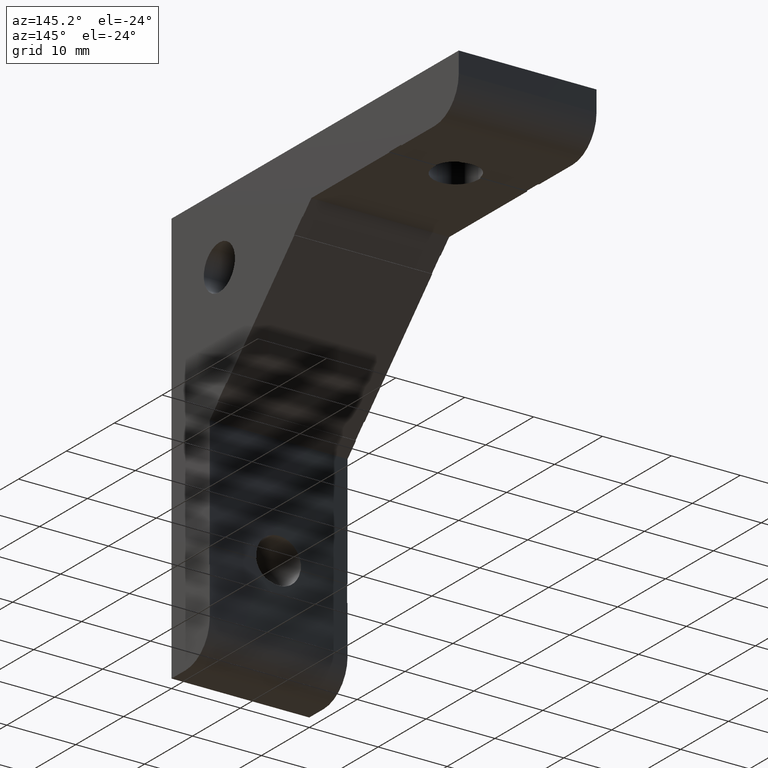
[diagram: clean part render]
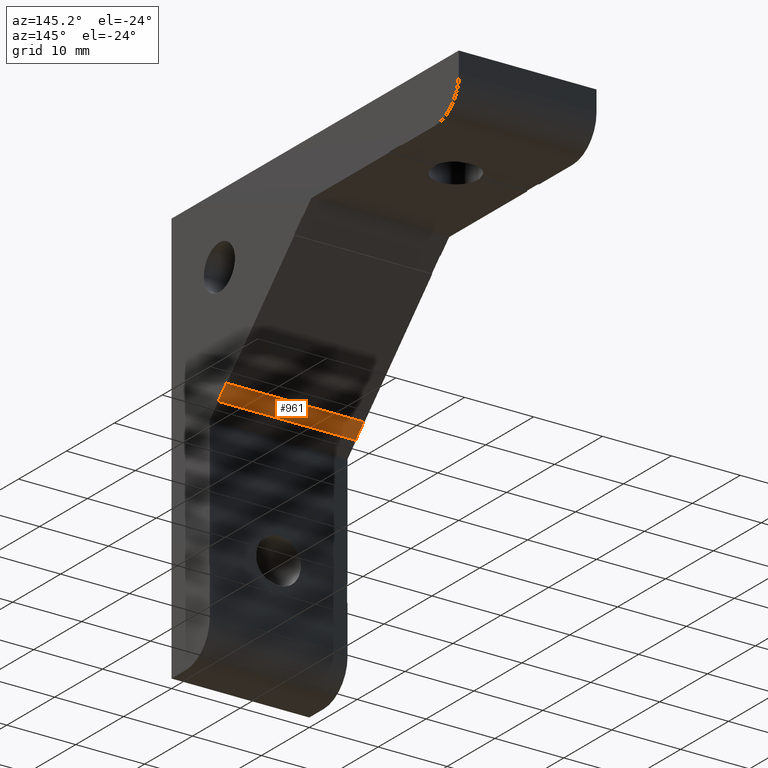
[diagram: same view with one face highlighted and labeled with its STEP entity id]
A machine part, auxiliary view. The second image highlights one B-rep face of the part: STEP entity #961.
In plain terms, the highlighted planar face has unit normal (0, -0.7071, 0.7071).
Its self-contained STEP definition (entity closure, byte-faithful):
#61 = ORIENTED_EDGE ( 'NONE', *, *, #564, .F. ) ;
#62 = ORIENTED_EDGE ( 'NONE', *, *, #630, .F. ) ;
#63 = ORIENTED_EDGE ( 'NONE', *, *, #950, .F. ) ;
#64 = ORIENTED_EDGE ( 'NONE', *, *, #631, .T. ) ;
#152 = CARTESIAN_POINT ( 'NONE',  ( 19.99999999999999600, 11.46482322800000000, -25.60695885200000500 ) ) ;
#174 = CARTESIAN_POINT ( 'NONE',  ( 0.0000000000000000000, 9.697056280000001700, -27.37472581000000100 ) ) ;
#192 = CARTESIAN_POINT ( 'NONE',  ( 19.99999999999999600, 9.697056275000001300, -27.37472580500000100 ) ) ;
#200 = CARTESIAN_POINT ( 'NONE',  ( 0.0000000000000000000, 11.46482323300000100, -25.60695885700000600 ) ) ;
#211 = CARTESIAN_POINT ( 'NONE',  ( 10.00000000000000000, 11.46482322800000000, -25.60695885200000500 ) ) ;
#212 = DIRECTION ( 'NONE',  ( -1.000000000000000000, -0.0000000000000000000, -0.0000000000000000000 ) ) ;
#239 = PLANE ( 'NONE',  #646 ) ;
#240 = CARTESIAN_POINT ( 'NONE',  ( 0.0000000000000000000, 11.46482322800000000, -25.60695885200000500 ) ) ;
#241 = DIRECTION ( 'NONE',  ( 0.0000000000000000000, -0.7071067811865468000, 0.7071067811865482400 ) ) ;
#242 = DIRECTION ( 'NONE',  ( 0.0000000000000000000, -0.7071067811865482400, -0.7071067811865468000 ) ) ;
#476 = CARTESIAN_POINT ( 'NONE',  ( 10.00000000000000000, 9.697056275000001300, -27.37472580500000100 ) ) ;
#477 = DIRECTION ( 'NONE',  ( 1.000000000000000000, 0.0000000000000000000, 0.0000000000000000000 ) ) ;
#564 = EDGE_CURVE ( 'NONE', #914, #932, #1381, .T. ) ;
#630 = EDGE_CURVE ( 'NONE', #940, #914, #1056, .T. ) ;
#631 = EDGE_CURVE ( 'NONE', #874, #932, #1058, .T. ) ;
#646 = AXIS2_PLACEMENT_3D ( 'NONE', #240, #241, #242 ) ;
#772 = EDGE_LOOP ( 'NONE', ( #61, #62, #63, #64 ) ) ;
#874 = VERTEX_POINT ( 'NONE', #152 ) ;
#914 = VERTEX_POINT ( 'NONE', #174 ) ;
#932 = VERTEX_POINT ( 'NONE', #192 ) ;
#940 = VERTEX_POINT ( 'NONE', #200 ) ;
#950 = EDGE_CURVE ( 'NONE', #874, #940, #1075, .T. ) ;
#961 = ADVANCED_FACE ( 'NONE', ( #1089 ), #239, .F. ) ;
#1056 = LINE ( 'NONE', #1237, #1057 ) ;
#1057 = VECTOR ( 'NONE', #1238, 1000.000000000000000 ) ;
#1058 = LINE ( 'NONE', #1239, #1059 ) ;
#1059 = VECTOR ( 'NONE', #1240, 1000.000000000000000 ) ;
#1075 = LINE ( 'NONE', #211, #1076 ) ;
#1076 = VECTOR ( 'NONE', #212, 1000.000000000000000 ) ;
#1089 = FACE_OUTER_BOUND ( 'NONE', #772, .T. ) ;
#1237 = CARTESIAN_POINT ( 'NONE',  ( 0.0000000000000000000, 11.46482322000000100, -25.60695888000000400 ) ) ;
#1238 = DIRECTION ( 'NONE',  ( 0.0000000000000000000, -0.7071067811865482400, -0.7071067811865469100 ) ) ;
#1239 = CARTESIAN_POINT ( 'NONE',  ( 19.99999999999999300, 11.46482322800000000, -25.60695885200000500 ) ) ;
#1240 = DIRECTION ( 'NONE',  ( 0.0000000000000000000, -0.7071067811865482400, -0.7071067811865469100 ) ) ;
#1381 = LINE ( 'NONE', #476, #1382 ) ;
#1382 = VECTOR ( 'NONE', #477, 1000.000000000000000 ) ;